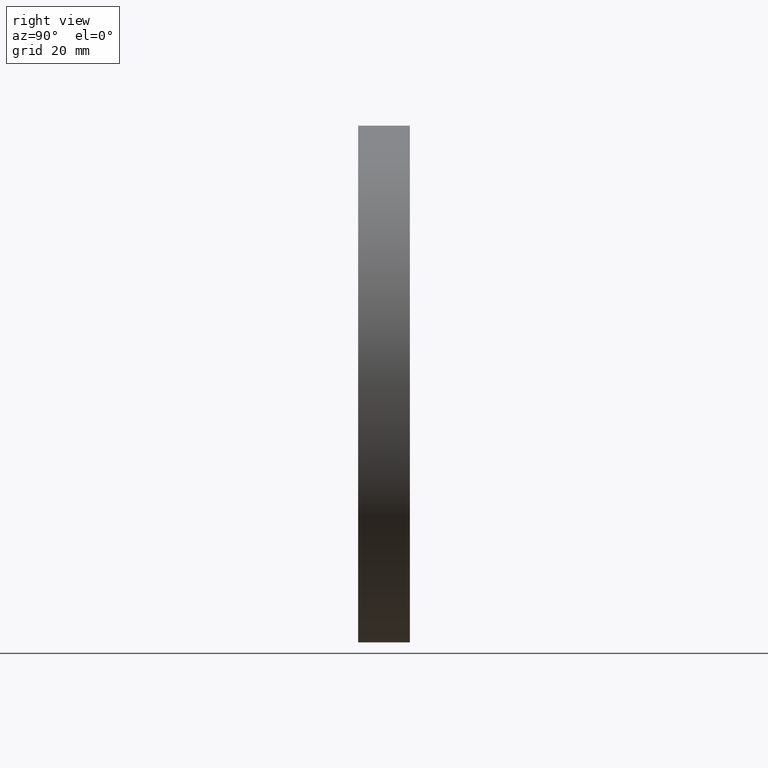
[diagram: clean part render]
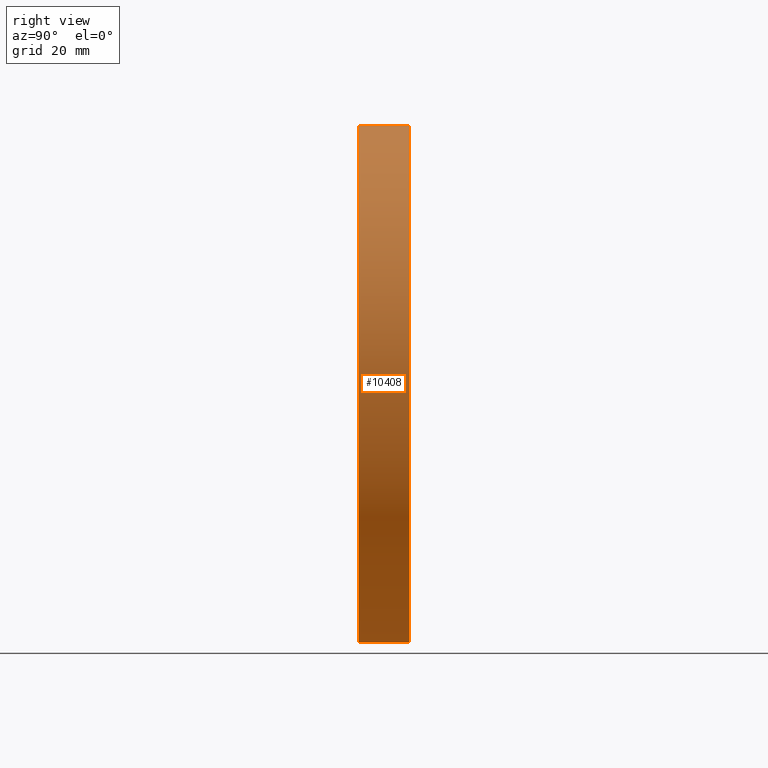
[diagram: same view with one face highlighted and labeled with its STEP entity id]
A machine part, right view. The second image highlights one B-rep face of the part: STEP entity #10408.
In plain terms, the highlighted cylindrical surface (partial cylindrical patch) has radius 50 mm, axis along (-0, -1, -0).
Its self-contained STEP definition (entity closure, byte-faithful):
#836 = VERTEX_POINT ( 'NONE', #10112 ) ;
#950 = ORIENTED_EDGE ( 'NONE', *, *, #6612, .F. ) ;
#1053 = CARTESIAN_POINT ( 'NONE',  ( 0.0000000000000000000, 0.0000000000000000000, -50.00000000000000000 ) ) ;
#1070 = EDGE_CURVE ( 'NONE', #836, #9340, #3045, .T. ) ;
#1136 = DIRECTION ( 'NONE',  ( 0.0000000000000000000, 0.0000000000000000000, -1.000000000000000000 ) ) ;
#1471 = DIRECTION ( 'NONE',  ( 0.0000000000000000000, 0.0000000000000000000, 1.000000000000000000 ) ) ;
#1684 = CARTESIAN_POINT ( 'NONE',  ( 0.0000000000000000000, 10.00000000000000000, 0.0000000000000000000 ) ) ;
#2087 = CARTESIAN_POINT ( 'NONE',  ( 0.0000000000000000000, 10.00000000000000000, 0.0000000000000000000 ) ) ;
#2502 = CARTESIAN_POINT ( 'NONE',  ( 6.123233995736766100E-015, 0.0000000000000000000, 50.00000000000000000 ) ) ;
#2680 = DIRECTION ( 'NONE',  ( 0.0000000000000000000, 1.000000000000000000, 0.0000000000000000000 ) ) ;
#2727 = DIRECTION ( 'NONE',  ( 0.0000000000000000000, 0.0000000000000000000, 1.000000000000000000 ) ) ;
#3045 = LINE ( 'NONE', #8041, #7652 ) ;
#3125 = DIRECTION ( 'NONE',  ( -0.0000000000000000000, -1.000000000000000000, -0.0000000000000000000 ) ) ;
#3443 = EDGE_CURVE ( 'NONE', #6417, #8771, #7613, .T. ) ;
#4539 = CARTESIAN_POINT ( 'NONE',  ( 6.123233995736766100E-015, 10.00000000000000000, 50.00000000000000000 ) ) ;
#4822 = CIRCLE ( 'NONE', #6296, 50.00000000000000000 ) ;
#4827 = DIRECTION ( 'NONE',  ( -0.0000000000000000000, -1.000000000000000000, -0.0000000000000000000 ) ) ;
#5057 = AXIS2_PLACEMENT_3D ( 'NONE', #1684, #2680, #2727 ) ;
#5851 = EDGE_LOOP ( 'NONE', ( #950, #12554, #6071, #9081 ) ) ;
#6071 = ORIENTED_EDGE ( 'NONE', *, *, #11505, .T. ) ;
#6222 = VECTOR ( 'NONE', #11460, 1000.000000000000000 ) ;
#6296 = AXIS2_PLACEMENT_3D ( 'NONE', #11232, #10359, #1471 ) ;
#6417 = VERTEX_POINT ( 'NONE', #8209 ) ;
#6612 = EDGE_CURVE ( 'NONE', #6417, #836, #10532, .T. ) ;
#7033 = AXIS2_PLACEMENT_3D ( 'NONE', #2087, #4827, #1136 ) ;
#7613 = LINE ( 'NONE', #4539, #6222 ) ;
#7652 = VECTOR ( 'NONE', #3125, 1000.000000000000000 ) ;
#7867 = CYLINDRICAL_SURFACE ( 'NONE', #7033, 50.00000000000000000 ) ;
#8041 = CARTESIAN_POINT ( 'NONE',  ( 0.0000000000000000000, 10.00000000000000000, -50.00000000000000000 ) ) ;
#8209 = CARTESIAN_POINT ( 'NONE',  ( 6.123233995736766100E-015, 10.00000000000000000, 50.00000000000000000 ) ) ;
#8771 = VERTEX_POINT ( 'NONE', #2502 ) ;
#9081 = ORIENTED_EDGE ( 'NONE', *, *, #1070, .F. ) ;
#9340 = VERTEX_POINT ( 'NONE', #1053 ) ;
#9863 = FACE_OUTER_BOUND ( 'NONE', #5851, .T. ) ;
#10112 = CARTESIAN_POINT ( 'NONE',  ( 0.0000000000000000000, 10.00000000000000000, -50.00000000000000000 ) ) ;
#10359 = DIRECTION ( 'NONE',  ( 0.0000000000000000000, 1.000000000000000000, 0.0000000000000000000 ) ) ;
#10408 = ADVANCED_FACE ( 'NONE', ( #9863 ), #7867, .T. ) ;
#10532 = CIRCLE ( 'NONE', #5057, 50.00000000000000000 ) ;
#11232 = CARTESIAN_POINT ( 'NONE',  ( 0.0000000000000000000, 0.0000000000000000000, 0.0000000000000000000 ) ) ;
#11460 = DIRECTION ( 'NONE',  ( -0.0000000000000000000, -1.000000000000000000, -0.0000000000000000000 ) ) ;
#11505 = EDGE_CURVE ( 'NONE', #8771, #9340, #4822, .T. ) ;
#12554 = ORIENTED_EDGE ( 'NONE', *, *, #3443, .T. ) ;